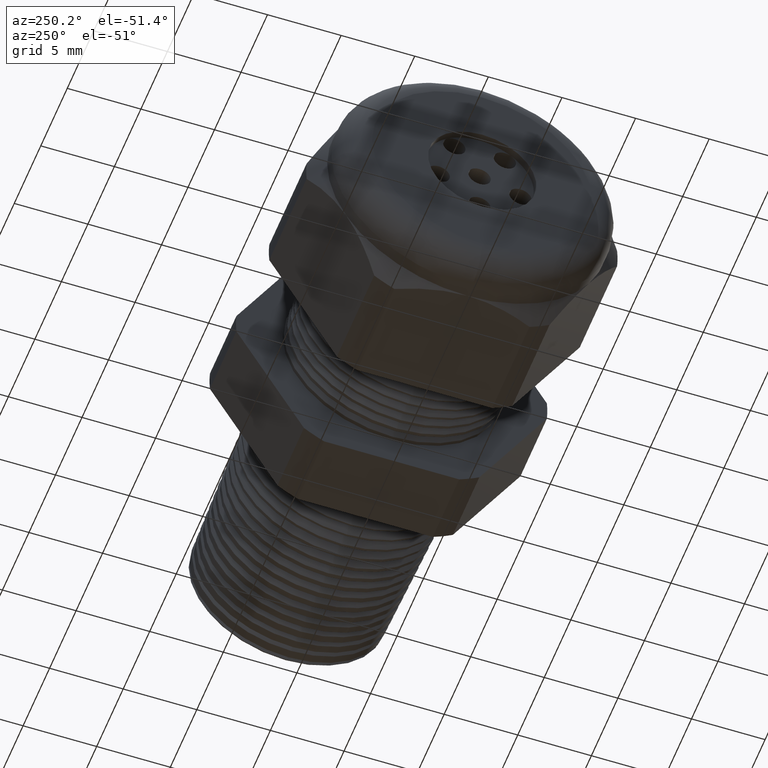
[diagram: clean part render]
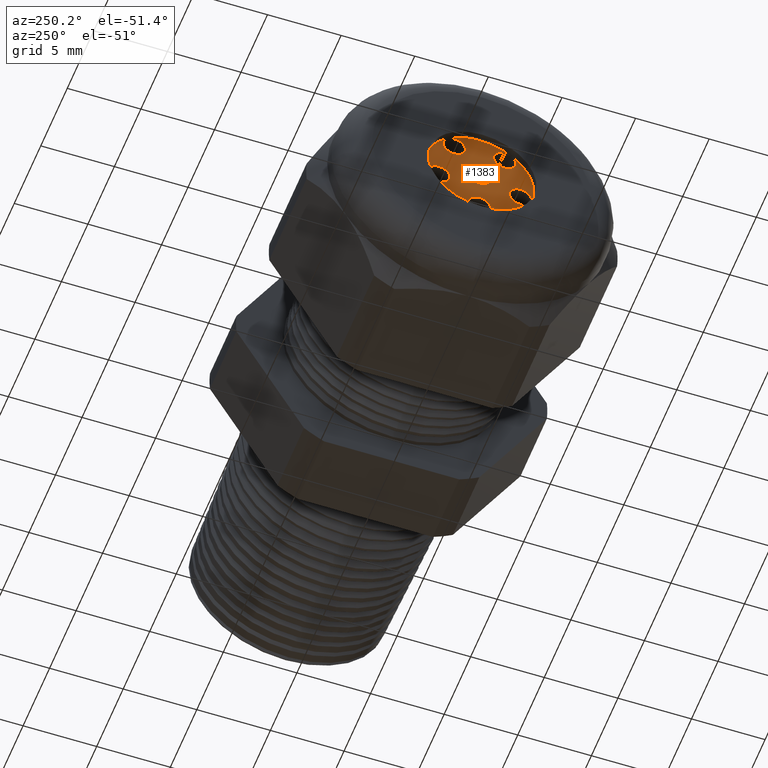
[diagram: same view with one face highlighted and labeled with its STEP entity id]
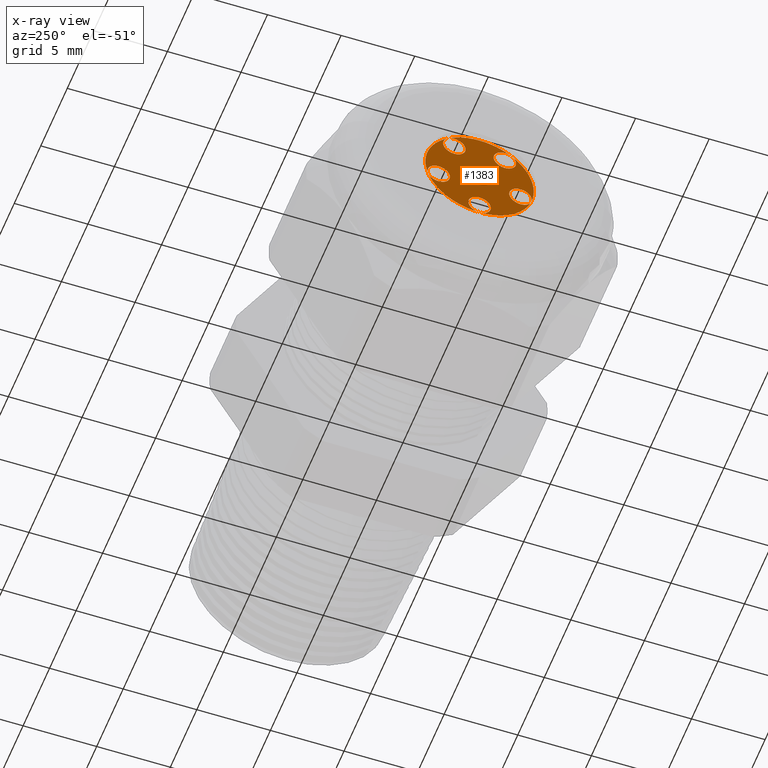
[diagram: x-ray of the same camera — body ghosted, the highlighted face saturated]
A machine part, auxiliary view. The second image highlights one B-rep face of the part: STEP entity #1383.
The next image is the same camera in x-ray: the body ghosted, the highlighted face saturated — about 0% of this face is hidden behind the body in this view.
In plain terms, the highlighted planar face has unit normal (-1, 0, 0).
Its self-contained STEP definition (entity closure, byte-faithful):
#1343 = VERTEX_POINT ( 'NONE', #4317 ) ;
#1381 = EDGE_CURVE ( 'NONE', #1517, #1463, #4414, .T. ) ;
#1383 = ADVANCED_FACE ( 'NONE', ( #4409, #4408, #4407, #4406, #4405, #4404, #4403 ), #4402, .T. ) ;
#1384 = EDGE_LOOP ( 'NONE', ( #1385, #1480 ) ) ;
#1385 = ORIENTED_EDGE ( 'NONE', *, *, #1386, .F. ) ;
#1386 = EDGE_CURVE ( 'NONE', #1570, #1467, #4397, .T. ) ;
#1417 = EDGE_CURVE ( 'NONE', #1343, #1418, #4461, .T. ) ;
#1418 = VERTEX_POINT ( 'NONE', #4456 ) ;
#1420 = ORIENTED_EDGE ( 'NONE', *, *, #1528, .F. ) ;
#1421 = EDGE_LOOP ( 'NONE', ( #1454, #1456 ) ) ;
#1424 = EDGE_CURVE ( 'NONE', #1418, #1343, #4516, .T. ) ;
#1454 = ORIENTED_EDGE ( 'NONE', *, *, #1455, .F. ) ;
#1455 = EDGE_CURVE ( 'NONE', #1569, #1566, #4538, .T. ) ;
#1456 = ORIENTED_EDGE ( 'NONE', *, *, #1568, .F. ) ;
#1457 = EDGE_LOOP ( 'NONE', ( #1458, #1608 ) ) ;
#1458 = ORIENTED_EDGE ( 'NONE', *, *, #1381, .F. ) ;
#1463 = VERTEX_POINT ( 'NONE', #4527 ) ;
#1467 = VERTEX_POINT ( 'NONE', #4522 ) ;
#1473 = VERTEX_POINT ( 'NONE', #4581 ) ;
#1475 = EDGE_CURVE ( 'NONE', #1473, #1476, #4576, .T. ) ;
#1476 = VERTEX_POINT ( 'NONE', #4571 ) ;
#1480 = ORIENTED_EDGE ( 'NONE', *, *, #1574, .F. ) ;
#1481 = EDGE_LOOP ( 'NONE', ( #1482, #1484 ) ) ;
#1482 = ORIENTED_EDGE ( 'NONE', *, *, #1483, .F. ) ;
#1483 = EDGE_CURVE ( 'NONE', #1513, #1510, #4566, .T. ) ;
#1484 = ORIENTED_EDGE ( 'NONE', *, *, #1512, .F. ) ;
#1485 = EDGE_LOOP ( 'NONE', ( #1486, #1494 ) ) ;
#1486 = ORIENTED_EDGE ( 'NONE', *, *, #1487, .F. ) ;
#1487 = EDGE_CURVE ( 'NONE', #1476, #1473, #4561, .T. ) ;
#1494 = ORIENTED_EDGE ( 'NONE', *, *, #1475, .F. ) ;
#1495 = EDGE_LOOP ( 'NONE', ( #1496, #1420 ) ) ;
#1496 = ORIENTED_EDGE ( 'NONE', *, *, #1497, .F. ) ;
#1497 = EDGE_CURVE ( 'NONE', #1529, #1526, #4605, .T. ) ;
#1510 = VERTEX_POINT ( 'NONE', #4644 ) ;
#1512 = EDGE_CURVE ( 'NONE', #1510, #1513, #4643, .T. ) ;
#1513 = VERTEX_POINT ( 'NONE', #4638 ) ;
#1516 = EDGE_CURVE ( 'NONE', #1463, #1517, #4633, .T. ) ;
#1517 = VERTEX_POINT ( 'NONE', #4628 ) ;
#1526 = VERTEX_POINT ( 'NONE', #4672 ) ;
#1528 = EDGE_CURVE ( 'NONE', #1526, #1529, #4671, .T. ) ;
#1529 = VERTEX_POINT ( 'NONE', #4666 ) ;
#1566 = VERTEX_POINT ( 'NONE', #4729 ) ;
#1568 = EDGE_CURVE ( 'NONE', #1566, #1569, #4728, .T. ) ;
#1569 = VERTEX_POINT ( 'NONE', #4723 ) ;
#1570 = VERTEX_POINT ( 'NONE', #4722 ) ;
#1574 = EDGE_CURVE ( 'NONE', #1467, #1570, #4717, .T. ) ;
#1608 = ORIENTED_EDGE ( 'NONE', *, *, #1516, .F. ) ;
#1609 = ORIENTED_EDGE ( 'NONE', *, *, #1424, .T. ) ;
#1632 = ORIENTED_EDGE ( 'NONE', *, *, #1417, .T. ) ;
#1633 = EDGE_LOOP ( 'NONE', ( #1609, #1632 ) ) ;
#4317 = CARTESIAN_POINT ( 'NONE',  ( -1.159999999999999900, 1.775737858763661900E-017, -0.1449999999999999900 ) ) ;
#4393 = DIRECTION ( 'NONE',  ( 0.0000000000000000000, 0.0000000000000000000, 1.000000000000000000 ) ) ;
#4394 = DIRECTION ( 'NONE',  ( -1.000000000000000000, 0.0000000000000000000, 0.0000000000000000000 ) ) ;
#4395 = CARTESIAN_POINT ( 'NONE',  ( -1.159999999999999900, 0.0000000000000000000, 0.0000000000000000000 ) ) ;
#4396 = AXIS2_PLACEMENT_3D ( 'NONE', #4395, #4394, #4393 ) ;
#4397 = CIRCLE ( 'NONE', #4396, 0.02999999999999999500 ) ;
#4398 = DIRECTION ( 'NONE',  ( 0.0000000000000000000, 0.0000000000000000000, 1.000000000000000000 ) ) ;
#4399 = DIRECTION ( 'NONE',  ( -1.000000000000000000, 0.0000000000000000000, 0.0000000000000000000 ) ) ;
#4400 = CARTESIAN_POINT ( 'NONE',  ( -1.159999999999999900, 0.0000000000000000000, 0.0000000000000000000 ) ) ;
#4401 = AXIS2_PLACEMENT_3D ( 'NONE', #4400, #4399, #4398 ) ;
#4402 = PLANE ( 'NONE',  #4401 ) ;
#4403 = FACE_OUTER_BOUND ( 'NONE', #1633, .T. ) ;
#4404 = FACE_BOUND ( 'NONE', #1457, .T. ) ;
#4405 = FACE_BOUND ( 'NONE', #1421, .T. ) ;
#4406 = FACE_BOUND ( 'NONE', #1495, .T. ) ;
#4407 = FACE_BOUND ( 'NONE', #1485, .T. ) ;
#4408 = FACE_BOUND ( 'NONE', #1481, .T. ) ;
#4409 = FACE_BOUND ( 'NONE', #1384, .T. ) ;
#4410 = DIRECTION ( 'NONE',  ( 0.0000000000000000000, 0.0000000000000000000, 1.000000000000000000 ) ) ;
#4411 = DIRECTION ( 'NONE',  ( -1.000000000000000000, 0.0000000000000000000, 0.0000000000000000000 ) ) ;
#4412 = CARTESIAN_POINT ( 'NONE',  ( -1.159999999999999900, 0.0000000000000000000, -0.1148800000000000000 ) ) ;
#4413 = AXIS2_PLACEMENT_3D ( 'NONE', #4412, #4411, #4410 ) ;
#4414 = CIRCLE ( 'NONE', #4413, 0.03000000000000000600 ) ;
#4456 = CARTESIAN_POINT ( 'NONE',  ( -1.159999999999999900, 0.0000000000000000000, 0.1449999999999999900 ) ) ;
#4457 = DIRECTION ( 'NONE',  ( 0.0000000000000000000, 0.0000000000000000000, 1.000000000000000000 ) ) ;
#4458 = DIRECTION ( 'NONE',  ( -1.000000000000000000, 0.0000000000000000000, 0.0000000000000000000 ) ) ;
#4459 = CARTESIAN_POINT ( 'NONE',  ( -1.159999999999999900, 0.0000000000000000000, 0.0000000000000000000 ) ) ;
#4460 = AXIS2_PLACEMENT_3D ( 'NONE', #4459, #4458, #4457 ) ;
#4461 = CIRCLE ( 'NONE', #4460, 0.1449999999999999900 ) ;
#4512 = DIRECTION ( 'NONE',  ( 0.0000000000000000000, 0.0000000000000000000, 1.000000000000000000 ) ) ;
#4513 = DIRECTION ( 'NONE',  ( -1.000000000000000000, 0.0000000000000000000, 0.0000000000000000000 ) ) ;
#4514 = CARTESIAN_POINT ( 'NONE',  ( -1.159999999999999900, 0.0000000000000000000, 0.0000000000000000000 ) ) ;
#4515 = AXIS2_PLACEMENT_3D ( 'NONE', #4514, #4513, #4512 ) ;
#4516 = CIRCLE ( 'NONE', #4515, 0.1449999999999999900 ) ;
#4522 = CARTESIAN_POINT ( 'NONE',  ( -1.159999999999999900, 3.673940397442059200E-018, -0.02999999999999999500 ) ) ;
#4527 = CARTESIAN_POINT ( 'NONE',  ( -1.159999999999999900, 3.673940397442061500E-018, -0.1448800000000000100 ) ) ;
#4534 = DIRECTION ( 'NONE',  ( 0.0000000000000000000, 0.9510565162951545300, 0.3090169943749447300 ) ) ;
#4535 = DIRECTION ( 'NONE',  ( -1.000000000000000000, 0.0000000000000000000, 0.0000000000000000000 ) ) ;
#4536 = CARTESIAN_POINT ( 'NONE',  ( -1.159999999999999900, -0.1092573725919873500, -0.03549987231379365900 ) ) ;
#4537 = AXIS2_PLACEMENT_3D ( 'NONE', #4536, #4535, #4534 ) ;
#4538 = CIRCLE ( 'NONE', #4537, 0.03000000000000000900 ) ;
#4557 = DIRECTION ( 'NONE',  ( 0.0000000000000000000, -0.5877852522924802400, -0.8090169943749424600 ) ) ;
#4558 = DIRECTION ( 'NONE',  ( -1.000000000000000000, 0.0000000000000000000, 0.0000000000000000000 ) ) ;
#4559 = CARTESIAN_POINT ( 'NONE',  ( -1.159999999999999900, 0.06752476978336012500, 0.09293987231379337300 ) ) ;
#4560 = AXIS2_PLACEMENT_3D ( 'NONE', #4559, #4558, #4557 ) ;
#4561 = CIRCLE ( 'NONE', #4560, 0.03000000000000000200 ) ;
#4562 = DIRECTION ( 'NONE',  ( 0.0000000000000000000, -0.9510565162951500900, 0.3090169943749582800 ) ) ;
#4563 = DIRECTION ( 'NONE',  ( -1.000000000000000000, 0.0000000000000000000, 0.0000000000000000000 ) ) ;
#4564 = CARTESIAN_POINT ( 'NONE',  ( -1.159999999999999900, 0.1092573725919868400, -0.03549987231379520000 ) ) ;
#4565 = AXIS2_PLACEMENT_3D ( 'NONE', #4564, #4563, #4562 ) ;
#4566 = CIRCLE ( 'NONE', #4565, 0.03000000000000000600 ) ;
#4571 = CARTESIAN_POINT ( 'NONE',  ( -1.159999999999999900, 0.06752476978336012500, 0.1229398723137933900 ) ) ;
#4572 = DIRECTION ( 'NONE',  ( 0.0000000000000000000, -0.5877852522924802400, -0.8090169943749424600 ) ) ;
#4573 = DIRECTION ( 'NONE',  ( -1.000000000000000000, 0.0000000000000000000, 0.0000000000000000000 ) ) ;
#4574 = CARTESIAN_POINT ( 'NONE',  ( -1.159999999999999900, 0.06752476978336012500, 0.09293987231379337300 ) ) ;
#4575 = AXIS2_PLACEMENT_3D ( 'NONE', #4574, #4573, #4572 ) ;
#4576 = CIRCLE ( 'NONE', #4575, 0.03000000000000000200 ) ;
#4581 = CARTESIAN_POINT ( 'NONE',  ( -1.159999999999999900, 0.06752476978336012500, 0.06293987231379336000 ) ) ;
#4601 = DIRECTION ( 'NONE',  ( 0.0000000000000000000, 0.5877852522924684700, -0.8090169943749508900 ) ) ;
#4602 = DIRECTION ( 'NONE',  ( -1.000000000000000000, 0.0000000000000000000, 0.0000000000000000000 ) ) ;
#4603 = CARTESIAN_POINT ( 'NONE',  ( -1.159999999999999900, -0.06752476978335877900, 0.09293987231379434400 ) ) ;
#4604 = AXIS2_PLACEMENT_3D ( 'NONE', #4603, #4602, #4601 ) ;
#4605 = CIRCLE ( 'NONE', #4604, 0.03000000000000000600 ) ;
#4628 = CARTESIAN_POINT ( 'NONE',  ( -1.159999999999999900, 0.0000000000000000000, -0.08487999999999998300 ) ) ;
#4629 = DIRECTION ( 'NONE',  ( 0.0000000000000000000, 0.0000000000000000000, 1.000000000000000000 ) ) ;
#4630 = DIRECTION ( 'NONE',  ( -1.000000000000000000, 0.0000000000000000000, 0.0000000000000000000 ) ) ;
#4631 = CARTESIAN_POINT ( 'NONE',  ( -1.159999999999999900, 0.0000000000000000000, -0.1148800000000000000 ) ) ;
#4632 = AXIS2_PLACEMENT_3D ( 'NONE', #4631, #4630, #4629 ) ;
#4633 = CIRCLE ( 'NONE', #4632, 0.03000000000000000600 ) ;
#4638 = CARTESIAN_POINT ( 'NONE',  ( -1.159999999999999900, 0.1092573725919868400, -0.005499872313795188900 ) ) ;
#4639 = DIRECTION ( 'NONE',  ( 0.0000000000000000000, -0.9510565162951500900, 0.3090169943749582800 ) ) ;
#4640 = DIRECTION ( 'NONE',  ( -1.000000000000000000, 0.0000000000000000000, 0.0000000000000000000 ) ) ;
#4641 = CARTESIAN_POINT ( 'NONE',  ( -1.159999999999999900, 0.1092573725919868400, -0.03549987231379520000 ) ) ;
#4642 = AXIS2_PLACEMENT_3D ( 'NONE', #4641, #4640, #4639 ) ;
#4643 = CIRCLE ( 'NONE', #4642, 0.03000000000000000600 ) ;
#4644 = CARTESIAN_POINT ( 'NONE',  ( -1.159999999999999900, 0.1092573725919868400, -0.06549987231379521300 ) ) ;
#4666 = CARTESIAN_POINT ( 'NONE',  ( -1.159999999999999900, -0.06752476978335877900, 0.1229398723137943400 ) ) ;
#4667 = DIRECTION ( 'NONE',  ( 0.0000000000000000000, 0.5877852522924684700, -0.8090169943749508900 ) ) ;
#4668 = DIRECTION ( 'NONE',  ( -1.000000000000000000, 0.0000000000000000000, 0.0000000000000000000 ) ) ;
#4669 = CARTESIAN_POINT ( 'NONE',  ( -1.159999999999999900, -0.06752476978335877900, 0.09293987231379434400 ) ) ;
#4670 = AXIS2_PLACEMENT_3D ( 'NONE', #4669, #4668, #4667 ) ;
#4671 = CIRCLE ( 'NONE', #4670, 0.03000000000000000600 ) ;
#4672 = CARTESIAN_POINT ( 'NONE',  ( -1.159999999999999900, -0.06752476978335877900, 0.06293987231379433200 ) ) ;
#4713 = DIRECTION ( 'NONE',  ( 0.0000000000000000000, 0.0000000000000000000, 1.000000000000000000 ) ) ;
#4714 = DIRECTION ( 'NONE',  ( -1.000000000000000000, 0.0000000000000000000, 0.0000000000000000000 ) ) ;
#4715 = CARTESIAN_POINT ( 'NONE',  ( -1.159999999999999900, 0.0000000000000000000, 0.0000000000000000000 ) ) ;
#4716 = AXIS2_PLACEMENT_3D ( 'NONE', #4715, #4714, #4713 ) ;
#4717 = CIRCLE ( 'NONE', #4716, 0.02999999999999999500 ) ;
#4722 = CARTESIAN_POINT ( 'NONE',  ( -1.159999999999999900, 0.0000000000000000000, 0.02999999999999999500 ) ) ;
#4723 = CARTESIAN_POINT ( 'NONE',  ( -1.159999999999999900, -0.1092573725919873500, -0.005499872313793647600 ) ) ;
#4724 = DIRECTION ( 'NONE',  ( 0.0000000000000000000, 0.9510565162951545300, 0.3090169943749447300 ) ) ;
#4725 = DIRECTION ( 'NONE',  ( -1.000000000000000000, 0.0000000000000000000, 0.0000000000000000000 ) ) ;
#4726 = CARTESIAN_POINT ( 'NONE',  ( -1.159999999999999900, -0.1092573725919873500, -0.03549987231379365900 ) ) ;
#4727 = AXIS2_PLACEMENT_3D ( 'NONE', #4726, #4725, #4724 ) ;
#4728 = CIRCLE ( 'NONE', #4727, 0.03000000000000000900 ) ;
#4729 = CARTESIAN_POINT ( 'NONE',  ( -1.159999999999999900, -0.1092573725919873500, -0.06549987231379367200 ) ) ;